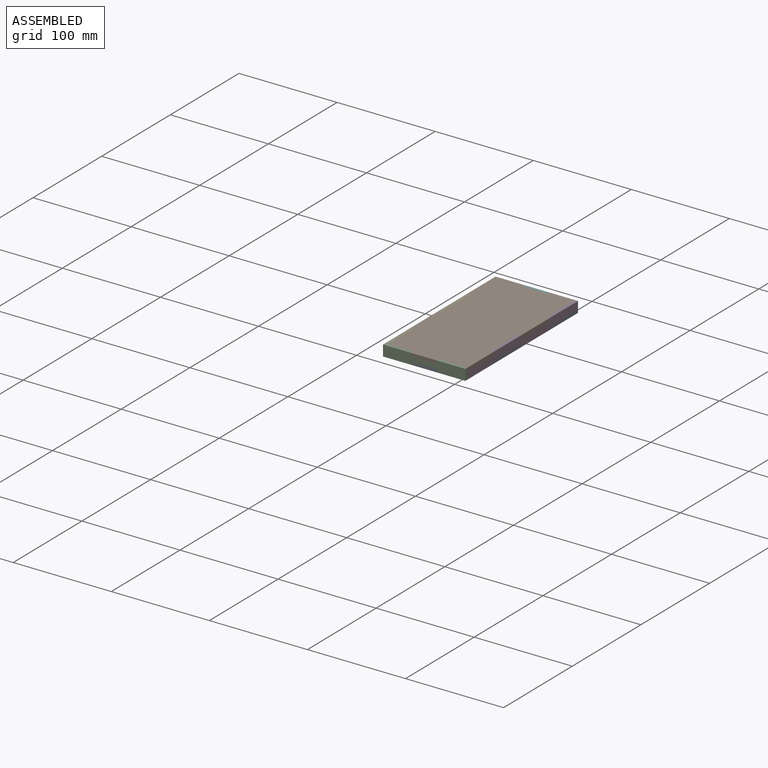
[diagram: assembled view]
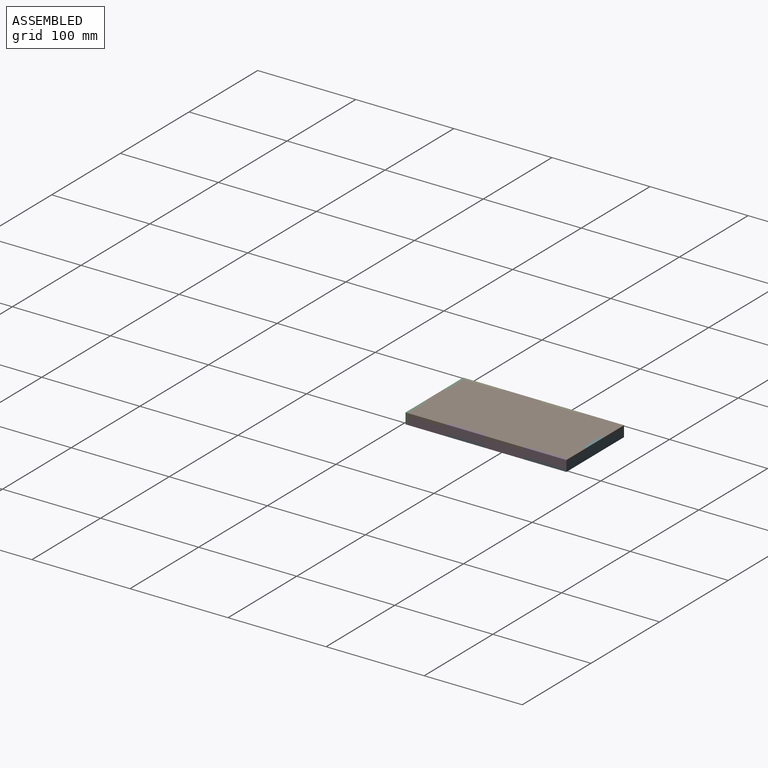
[diagram: assembled view, second angle]
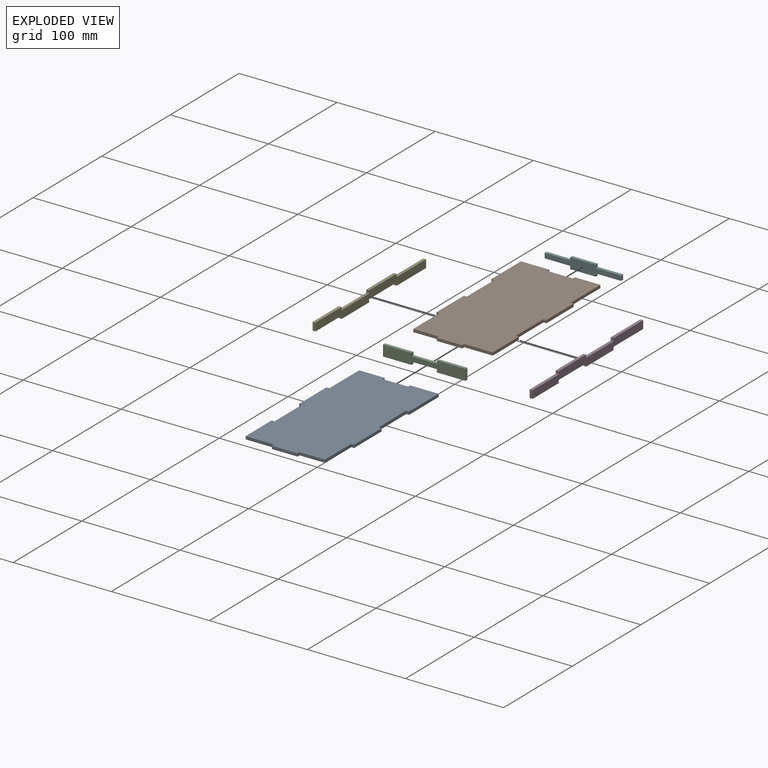
[diagram: exploded view]
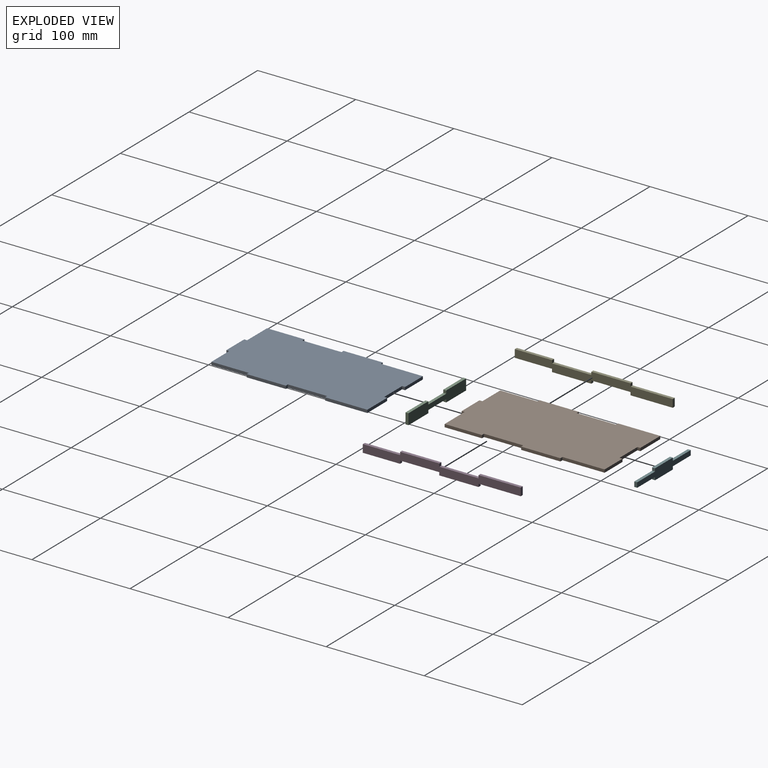
[diagram: exploded view, second angle]
ASSEMBLY  parts=6 mates=5
PART A: 26 faces, bbox 84x164x3 mm
  f0: plane 29x3mm, normal (0,-1,0), area 87mm2, adj f1,f23,f24,f25
  f1: plane 3x3mm, normal (-1,0,0), area 9mm2, adj f0,f2,f24,f25
  f2: plane 26x3mm, normal (0,-1,0), area 78mm2, adj f1,f3,f24,f25
  f3: plane 3x3mm, normal (1,0,0), area 9mm2, adj f2,f4,f24,f25
  f4: plane 26x3mm, normal (0,-1,0), area 78mm2, adj f3,f5,f24,f25
  f5: plane 38x3mm, normal (1,0,0), area 114mm2, adj f4,f6,f24,f25
  f6: plane 3x3mm, normal (0,-1,0), area 9mm2, adj f5,f7,f24,f25
  f7: plane 40x3mm, normal (1,0,0), area 120mm2, adj f6,f8,f24,f25
  f8: plane 3x3mm, normal (0,1,0), area 9mm2, adj f7,f9,f24,f25
  f9: plane 40x3mm, normal (1,0,0), area 120mm2, adj f8,f10,f24,f25
  f10: plane 3x3mm, normal (0,-1,0), area 9mm2, adj f9,f11,f24,f25
  f11: plane 43x3mm, normal (1,0,0), area 129mm2, adj f10,f12,f24,f25
  f12: plane 29x3mm, normal (0,1,0), area 87mm2, adj f11,f13,f24,f25
  f13: plane 3x3mm, normal (-1,0,0), area 9mm2, adj f12,f14,f24,f25
  f14: plane 26x3mm, normal (0,1,0), area 78mm2, adj f13,f15,f24,f25
  f15: plane 3x3mm, normal (1,0,0), area 9mm2, adj f14,f16,f24,f25
  f16: plane 26x3mm, normal (0,1,0), area 78mm2, adj f15,f17,f24,f25
  f17: plane 43x3mm, normal (-1,0,0), area 129mm2, adj f16,f18,f24,f25
  f18: plane 3x3mm, normal (0,1,0), area 9mm2, adj f17,f19,f24,f25
  f19: plane 40x3mm, normal (-1,0,0), area 120mm2, adj f18,f20,f24,f25
  f20: plane 3x3mm, normal (0,-1,0), area 9mm2, adj f19,f21,f24,f25
  f21: plane 40x3mm, normal (-1,0,0), area 120mm2, adj f20,f22,f24,f25
  f22: plane 3x3mm, normal (0,1,0), area 9mm2, adj f21,f23,f24,f25
  f23: plane 38x3mm, normal (-1,0,0), area 114mm2, adj f0,f22,f24,f25
  f24: plane 164x84mm, normal (0,0,1), area 13041mm2, adj f0,f1,f2,f3,f4,f5,f6,f7
  f25: plane 164x84mm, normal (0,0,-1), area 13041mm2, adj f0,f1,f2,f3,f4,f5,f6,f7
PART B: same geometry as A
PART C: 14 faces, bbox 84x3x11 mm
  f0: plane 29x3mm, normal (0,0,-1), area 87mm2, adj f1,f11,f12,f13
  f1: plane 3x3mm, normal (1,0,0), area 9mm2, adj f0,f2,f12,f13
  f2: plane 26x3mm, normal (0,0,-1), area 78mm2, adj f1,f3,f12,f13
  f3: plane 3x3mm, normal (-1,0,0), area 9mm2, adj f2,f4,f12,f13
  f4: plane 29x3mm, normal (0,0,-1), area 87mm2, adj f3,f5,f12,f13
  f5: plane 11x3mm, normal (1,0,0), area 33mm2, adj f4,f6,f12,f13
  f6: plane 29x3mm, normal (0,0,1), area 87mm2, adj f5,f7,f12,f13
  f7: plane 3x3mm, normal (-1,0,0), area 9mm2, adj f6,f8,f12,f13
  f8: plane 26x3mm, normal (0,0,1), area 78mm2, adj f7,f9,f12,f13
  f9: plane 3x3mm, normal (1,0,0), area 9mm2, adj f8,f10,f12,f13
  f10: plane 29x3mm, normal (0,0,1), area 87mm2, adj f9,f11,f12,f13
  f11: plane 11x3mm, normal (-1,0,0), area 33mm2, adj f0,f10,f12,f13
  f12: plane 84x11mm, normal (0,-1,0), area 768mm2, adj f0,f1,f2,f3,f4,f5,f6,f7
  f13: plane 84x11mm, normal (0,1,0), area 768mm2, adj f0,f1,f2,f3,f4,f5,f6,f7
PART D: 18 faces, bbox 3x161x11 mm
  f0: plane 8x3mm, normal (0,-1,0), area 24mm2, adj f1,f15,f16,f17
  f1: plane 38x3mm, normal (0,0,-1), area 114mm2, adj f0,f2,f16,f17
  f2: plane 3x3mm, normal (0,1,0), area 9mm2, adj f1,f3,f16,f17
  f3: plane 40x3mm, normal (0,0,-1), area 120mm2, adj f2,f4,f16,f17
  f4: plane 3x3mm, normal (0,-1,0), area 9mm2, adj f3,f5,f16,f17
  f5: plane 40x3mm, normal (0,0,-1), area 120mm2, adj f4,f6,f16,f17
  f6: plane 3x3mm, normal (0,1,0), area 9mm2, adj f5,f7,f16,f17
  f7: plane 43x3mm, normal (0,0,-1), area 129mm2, adj f6,f8,f16,f17
  f8: plane 8x3mm, normal (0,1,0), area 24mm2, adj f7,f9,f16,f17
  f9: plane 43x3mm, normal (0,0,1), area 129mm2, adj f8,f10,f16,f17
  f10: plane 3x3mm, normal (0,-1,0), area 9mm2, adj f9,f11,f16,f17
  f11: plane 40x3mm, normal (0,0,1), area 120mm2, adj f10,f12,f16,f17
  f12: plane 3x3mm, normal (0,1,0), area 9mm2, adj f11,f13,f16,f17
  f13: plane 40x3mm, normal (0,0,1), area 120mm2, adj f12,f14,f16,f17
  f14: plane 3x3mm, normal (0,-1,0), area 9mm2, adj f13,f15,f16,f17
  f15: plane 38x3mm, normal (0,0,1), area 114mm2, adj f0,f14,f16,f17
  f16: plane 161x11mm, normal (1,0,0), area 1288mm2, adj f0,f1,f2,f3,f4,f5,f6,f7
  f17: plane 161x11mm, normal (-1,0,0), area 1288mm2, adj f0,f1,f2,f3,f4,f5,f6,f7
PART E: same geometry as D
PART F: 14 faces, bbox 78x3x11 mm
  f0: plane 3x3mm, normal (1,0,0), area 9mm2, adj f1,f11,f12,f13
  f1: plane 26x3mm, normal (0,0,1), area 78mm2, adj f0,f2,f12,f13
  f2: plane 5x3mm, normal (1,0,0), area 15mm2, adj f1,f3,f12,f13
  f3: plane 26x3mm, normal (0,0,-1), area 78mm2, adj f2,f4,f12,f13
  f4: plane 3x3mm, normal (1,0,0), area 9mm2, adj f3,f5,f12,f13
  f5: plane 26x3mm, normal (0,0,-1), area 78mm2, adj f4,f6,f12,f13
  f6: plane 3x3mm, normal (-1,0,0), area 9mm2, adj f5,f7,f12,f13
  f7: plane 26x3mm, normal (0,0,-1), area 78mm2, adj f6,f8,f12,f13
  f8: plane 5x3mm, normal (-1,0,0), area 15mm2, adj f7,f9,f12,f13
  f9: plane 26x3mm, normal (0,0,1), area 78mm2, adj f8,f10,f12,f13
  f10: plane 3x3mm, normal (-1,0,0), area 9mm2, adj f9,f11,f12,f13
  f11: plane 26x3mm, normal (0,0,1), area 78mm2, adj f0,f10,f12,f13
  f12: plane 78x11mm, normal (0,1,0), area 546mm2, adj f0,f1,f2,f3,f4,f5,f6,f7
  f13: plane 78x11mm, normal (0,-1,0), area 546mm2, adj f0,f1,f2,f3,f4,f5,f6,f7
PLACE A t=(-35.09,-12.26,53.15)mm
PLACE B rot(axis=(0,1,0),180deg) t=(-35.09,-12.26,64.15)mm
PLACE C t=(-35.09,-12.26,53.15)mm
PLACE D rot(axis=(-0.31,0.95,0),0deg) t=(-35.09,-12.26,53.15)mm
PLACE E rot(axis=(0,1,0),180deg) t=(-35.09,-12.26,64.15)mm
PLACE F rot(axis=(-0.02,-0.23,-0.97),0deg) t=(-35.09,-15.26,53.15)mm
MATE fastened A.f10 <-> D.f6  axis (0,-1,0) through (5.41,26.74,54.65)mm
MATE fastened F.f0 <-> B.f15  axis (1,0,0) through (-22.09,68.24,62.65)mm
MATE fastened E.f6 <-> B.f10  axis (0,1,0) through (-75.59,26.74,62.65)mm
MATE fastened D.f12 <-> B.f20  axis (0,1,0) through (5.41,-13.26,62.65)mm
MATE fastened C.f1 <-> A.f1  axis (1,0,0) through (-48.09,-92.76,54.65)mm
